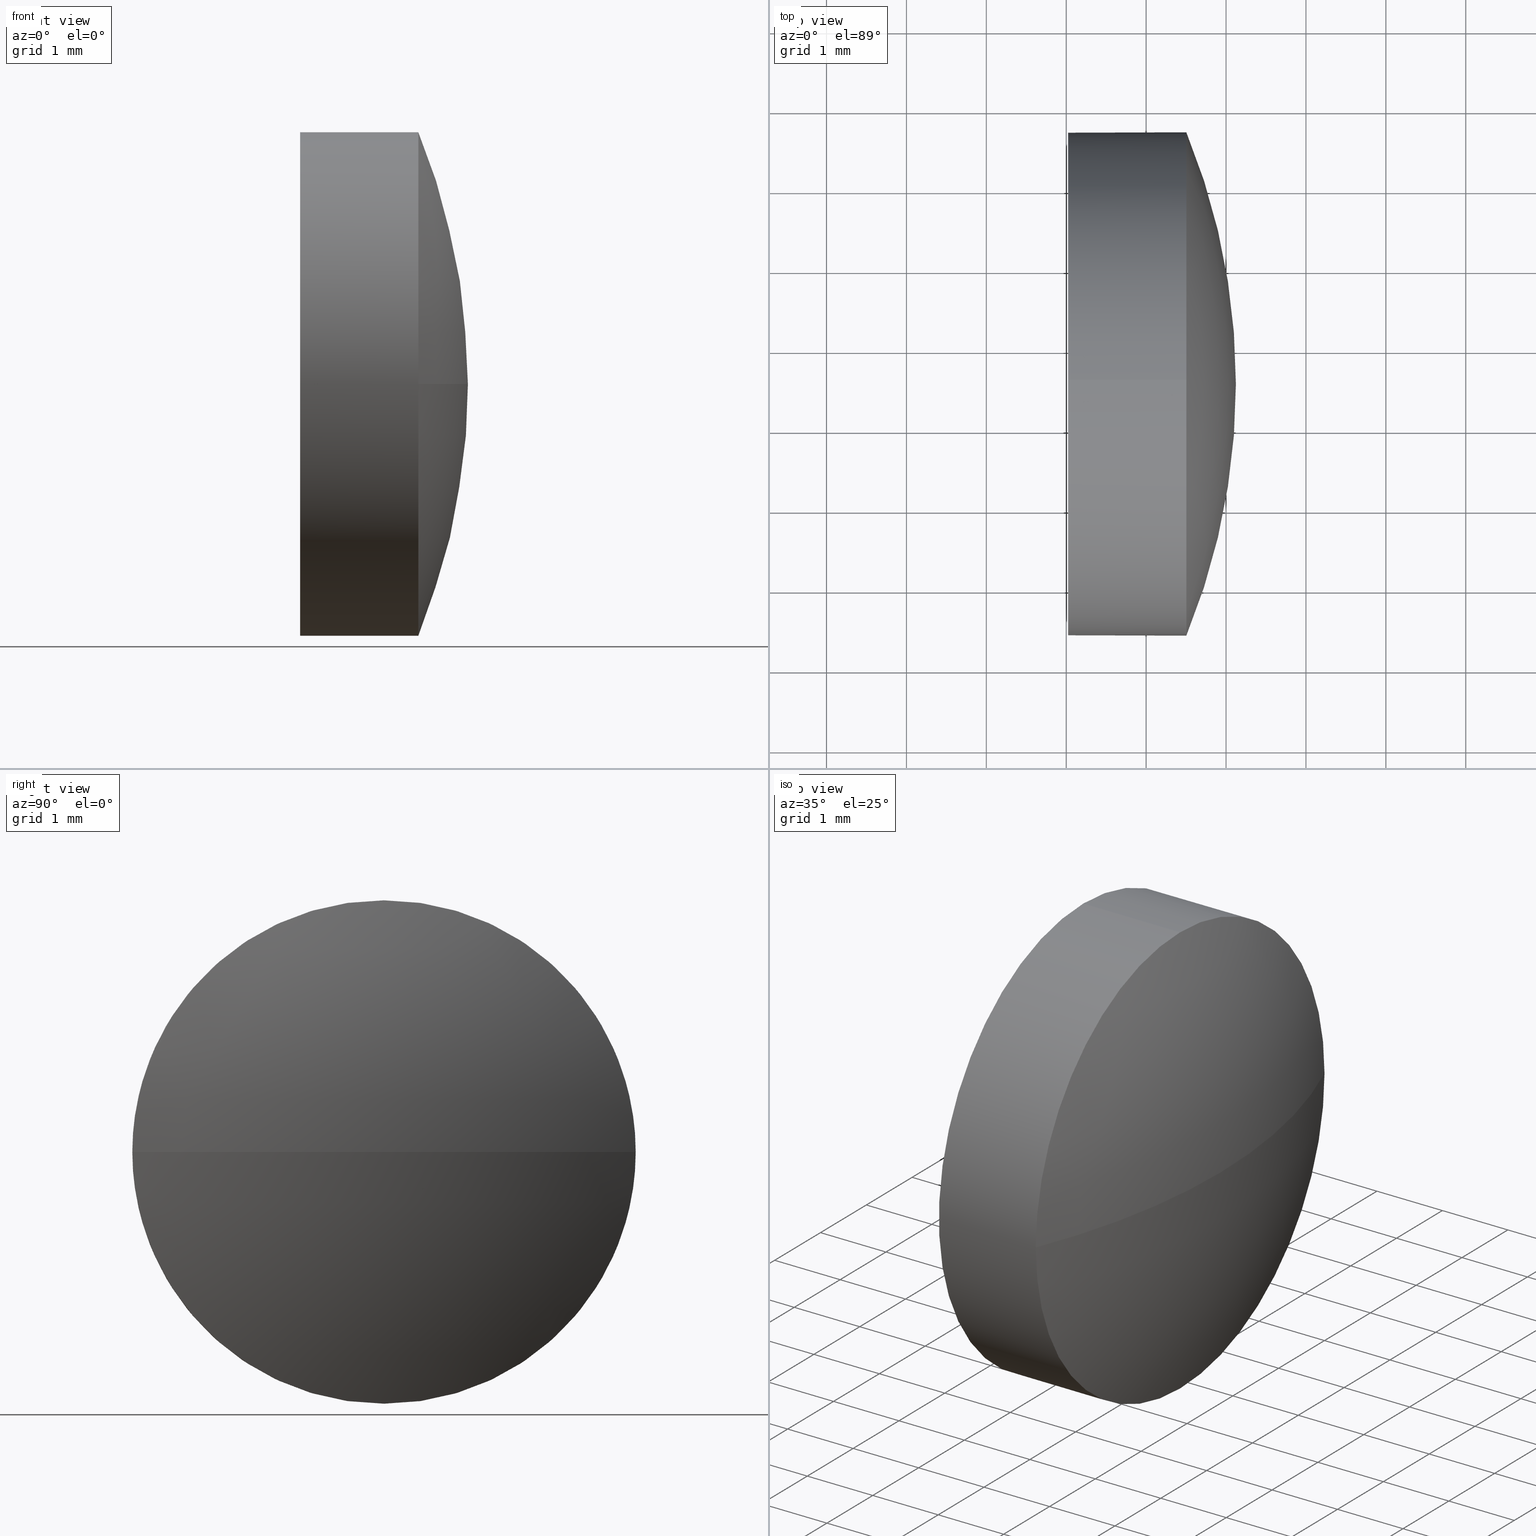
[diagram: canonical four-view strip — front | top / right | iso, engineering-drawing reading convention]
A machine part, canonical four-view strip (front | top / right | iso — engineering-drawing reading convention). The complete STEP part file that produces these views, byte-faithful:
ISO-10303-21;
HEADER;
FILE_DESCRIPTION (( 'STEP AP214' ),
    '1' );
FILE_NAME ('100181.STEP',
    '2019-05-21T02:26:22',
    ( '' ),
    ( '' ),
    'SwSTEP 2.0',
    'SolidWorks 2016',
    '' );
FILE_SCHEMA (( 'AUTOMOTIVE_DESIGN' ));
ENDSEC;

DATA;
#1 = VECTOR ( 'NONE', #74, 1000.000000000000000 ) ;
#2 =( GEOMETRIC_REPRESENTATION_CONTEXT ( 3 ) GLOBAL_UNCERTAINTY_ASSIGNED_CONTEXT ( ( #163 ) ) GLOBAL_UNIT_ASSIGNED_CONTEXT ( ( #8, #63, #62 ) ) REPRESENTATION_CONTEXT ( 'NONE', 'WORKASPACE' ) );
#3 = ORIENTED_EDGE ( 'NONE', *, *, #65, .F. ) ;
#4 = CARTESIAN_POINT ( 'NONE',  ( 444.5033712523841700, -98.43972951502320300, 3.150000000000013700 ) ) ;
#5 = DIRECTION ( 'NONE',  ( -1.000000000000000000, -0.0000000000000000000, -0.0000000000000000000 ) ) ;
#6 = PRODUCT_RELATED_PRODUCT_CATEGORY ( 'part', '', ( #150 ) ) ;
#7 = CARTESIAN_POINT ( 'NONE',  ( 444.5033712523841700, -95.28972951502321100, 0.0000000000000000000 ) ) ;
#8 =( LENGTH_UNIT ( ) NAMED_UNIT ( * ) SI_UNIT ( .MILLI., .METRE. ) );
#9 = CIRCLE ( 'NONE', #48, 8.312016129032318900 ) ;
#10 = APPLICATION_CONTEXT ( 'automotive_design' ) ;
#11 = ORIENTED_EDGE ( 'NONE', *, *, #125, .T. ) ;
#12 =( GEOMETRIC_REPRESENTATION_CONTEXT ( 3 ) GLOBAL_UNCERTAINTY_ASSIGNED_CONTEXT ( ( #92 ) ) GLOBAL_UNIT_ASSIGNED_CONTEXT ( ( #130, #139, #156 ) ) REPRESENTATION_CONTEXT ( 'NONE', 'WORKASPACE' ) );
#13 = ORIENTED_EDGE ( 'NONE', *, *, #169, .F. ) ;
#14 = PRODUCT_DEFINITION_CONTEXT ( 'detailed design', #10, 'design' ) ;
#15 = AXIS2_PLACEMENT_3D ( 'NONE', #51, #5, #174 ) ;
#16 = VECTOR ( 'NONE', #158, 1000.000000000000000 ) ;
#17 = CARTESIAN_POINT ( 'NONE',  ( 443.0233712523840900, -98.43972951502320300, 0.0000000000000000000 ) ) ;
#18 = DIRECTION ( 'NONE',  ( -0.0000000000000000000, 0.0000000000000000000, -1.000000000000000000 ) ) ;
#19 = AXIS2_PLACEMENT_3D ( 'NONE', #140, #18, #77 ) ;
#20 = DIRECTION ( 'NONE',  ( 0.0000000000000000000, 0.0000000000000000000, 1.000000000000000000 ) ) ;
#21 = CARTESIAN_POINT ( 'NONE',  ( 442.2176608398421500, -98.43972951502320300, 3.150000000000013700 ) ) ;
#22 = DIRECTION ( 'NONE',  ( 0.0000000000000000000, 0.0000000000000000000, 1.000000000000000000 ) ) ;
#23 = AXIS2_PLACEMENT_3D ( 'NONE', #116, #129, #78 ) ;
#24 = CIRCLE ( 'NONE', #41, 3.150000000000013700 ) ;
#25 = ADVANCED_FACE ( 'NONE', ( #84 ), #171, .T. ) ;
#26 = ADVANCED_FACE ( 'NONE', ( #121 ), #37, .T. ) ;
#27 = EDGE_CURVE ( 'NONE', #75, #38, #24, .T. ) ;
#28 = SURFACE_STYLE_FILL_AREA ( #104 ) ;
#29 = DIRECTION ( 'NONE',  ( -1.000000000000000000, -0.0000000000000000000, -0.0000000000000000000 ) ) ;
#30 = EDGE_CURVE ( 'NONE', #136, #114, #42, .T. ) ;
#31 = ORIENTED_EDGE ( 'NONE', *, *, #112, .T. ) ;
#32 = PRODUCT_DEFINITION ( 'δ֪', '', #164, #14 ) ;
#33 = FILL_AREA_STYLE ('',( #106 ) ) ;
#34 =( NAMED_UNIT ( * ) PLANE_ANGLE_UNIT ( ) SI_UNIT ( $, .RADIAN. ) );
#35 = EDGE_LOOP ( 'NONE', ( #145, #117, #111, #157, #72 ) ) ;
#36 = SURFACE_SIDE_STYLE ('',( #182 ) ) ;
#37 = SPHERICAL_SURFACE ( 'NONE', #181, 8.312016129032320700 ) ;
#38 = VERTEX_POINT ( 'NONE', #83 ) ;
#39 = ORIENTED_EDGE ( 'NONE', *, *, #88, .F. ) ;
#40 = CARTESIAN_POINT ( 'NONE',  ( 442.2176608398421500, -98.43972951502320300, 0.0000000000000000000 ) ) ;
#41 = AXIS2_PLACEMENT_3D ( 'NONE', #17, #173, #186 ) ;
#42 = CIRCLE ( 'NONE', #115, 3.150000000000013700 ) ;
#43 = CARTESIAN_POINT ( 'NONE',  ( 443.0233712523840900, -98.43972951502320300, -3.150000000000013700 ) ) ;
#44 = EDGE_LOOP ( 'NONE', ( #31, #11, #39, #13, #120 ) ) ;
#45 = CARTESIAN_POINT ( 'NONE',  ( 444.5033712523841700, -98.43972951502320300, 0.0000000000000000000 ) ) ;
#46 = CARTESIAN_POINT ( 'NONE',  ( 444.5033712523841700, -101.5897295150232700, -3.857637417314167600E-016 ) ) ;
#47 = CARTESIAN_POINT ( 'NONE',  ( 444.5033712523841700, -98.43972951502320300, -3.150000000000013700 ) ) ;
#48 = AXIS2_PLACEMENT_3D ( 'NONE', #69, #110, #123 ) ;
#49 = CARTESIAN_POINT ( 'NONE',  ( 444.5033712523841700, -98.43972951502320300, 0.0000000000000000000 ) ) ;
#50 = CIRCLE ( 'NONE', #80, 3.150000000000013700 ) ;
#51 = CARTESIAN_POINT ( 'NONE',  ( 443.0233712523840900, -98.43972951502320300, 0.0000000000000000000 ) ) ;
#52 = APPLICATION_PROTOCOL_DEFINITION ( 'draft international standard', 'automotive_design', 1998, #10 ) ;
#53 = ADVANCED_FACE ( 'NONE', ( #56 ), #131, .T. ) ;
#54 = ORIENTED_EDGE ( 'NONE', *, *, #108, .T. ) ;
#55 = STYLED_ITEM ( 'NONE', ( #180 ), #132 ) ;
#56 = FACE_OUTER_BOUND ( 'NONE', #35, .T. ) ;
#57 = SPHERICAL_SURFACE ( 'NONE', #19, 8.312016129032320700 ) ;
#58 = CARTESIAN_POINT ( 'NONE',  ( 442.2176608398421500, -98.43972951502320300, 0.0000000000000000000 ) ) ;
#59 = DIRECTION ( 'NONE',  ( 0.0000000000000000000, 0.0000000000000000000, 1.000000000000000000 ) ) ;
#60 = AXIS2_PLACEMENT_3D ( 'NONE', #178, #103, #76 ) ;
#61 = ORIENTED_EDGE ( 'NONE', *, *, #108, .F. ) ;
#62 =( NAMED_UNIT ( * ) SI_UNIT ( $, .STERADIAN. ) SOLID_ANGLE_UNIT ( ) );
#63 =( NAMED_UNIT ( * ) PLANE_ANGLE_UNIT ( ) SI_UNIT ( $, .RADIAN. ) );
#64 = LINE ( 'NONE', #21, #16 ) ;
#65 = EDGE_CURVE ( 'NONE', #86, #146, #9, .T. ) ;
#66 = PRESENTATION_STYLE_ASSIGNMENT (( #137 ) ) ;
#67 = DIRECTION ( 'NONE',  ( -1.000000000000000000, -0.0000000000000000000, -0.0000000000000000000 ) ) ;
#68 = COLOUR_RGB ( '',1.000000000000000000, 1.000000000000000000, 1.000000000000000000 ) ;
#69 = CARTESIAN_POINT ( 'NONE',  ( 436.8113551233518600, -98.43972951502324500, 0.0000000000000000000 ) ) ;
#70 = EDGE_CURVE ( 'NONE', #109, #136, #50, .T. ) ;
#71 = EDGE_LOOP ( 'NONE', ( #90, #126 ) ) ;
#72 = ORIENTED_EDGE ( 'NONE', *, *, #27, .F. ) ;
#73 = CARTESIAN_POINT ( 'NONE',  ( 445.1233712523841700, -98.43972951502324500, 0.0000000000000000000 ) ) ;
#74 = DIRECTION ( 'NONE',  ( -1.000000000000000000, -0.0000000000000000000, -0.0000000000000000000 ) ) ;
#75 = VERTEX_POINT ( 'NONE', #43 ) ;
#76 = DIRECTION ( 'NONE',  ( 0.0000000000000000000, 0.0000000000000000000, 1.000000000000000000 ) ) ;
#77 = DIRECTION ( 'NONE',  ( 0.0000000000000000000, 1.000000000000000000, 0.0000000000000000000 ) ) ;
#78 = DIRECTION ( 'NONE',  ( 0.0000000000000000000, 1.000000000000000000, 1.224646799147353700E-016 ) ) ;
#79 = ADVANCED_FACE ( 'NONE', ( #93 ), #147, .F. ) ;
#80 = AXIS2_PLACEMENT_3D ( 'NONE', #167, #94, #59 ) ;
#81 = PRESENTATION_LAYER_ASSIGNMENT (  '', '', ( #55 ) ) ;
#82 = EDGE_LOOP ( 'NONE', ( #61, #99, #141, #119 ) ) ;
#83 = CARTESIAN_POINT ( 'NONE',  ( 443.0233712523840900, -98.43972951502320300, 3.150000000000013700 ) ) ;
#84 = FACE_OUTER_BOUND ( 'NONE', #44, .T. ) ;
#85 = CIRCLE ( 'NONE', #176, 3.150000000000013700 ) ;
#86 = VERTEX_POINT ( 'NONE', #73 ) ;
#87 = DIRECTION ( 'NONE',  ( -1.000000000000000000, -0.0000000000000000000, -0.0000000000000000000 ) ) ;
#88 = EDGE_CURVE ( 'NONE', #38, #75, #149, .T. ) ;
#89 = FILL_AREA_STYLE_COLOUR ( '', #107 ) ;
#90 = ORIENTED_EDGE ( 'NONE', *, *, #88, .T. ) ;
#91 = PRODUCT_CONTEXT ( 'NONE', #179, 'mechanical' ) ;
#92 = UNCERTAINTY_MEASURE_WITH_UNIT (LENGTH_MEASURE( 1.000000000000000100E-005 ), #130, 'distance_accuracy_value', 'NONE');
#93 = FACE_OUTER_BOUND ( 'NONE', #71, .T. ) ;
#94 = DIRECTION ( 'NONE',  ( -1.000000000000000000, -0.0000000000000000000, -0.0000000000000000000 ) ) ;
#95 = DIRECTION ( 'NONE',  ( -1.000000000000000000, -0.0000000000000000000, -0.0000000000000000000 ) ) ;
#96 = DIRECTION ( 'NONE',  ( 0.0000000000000000000, 1.000000000000000000, 0.0000000000000000000 ) ) ;
#97 = SHAPE_DEFINITION_REPRESENTATION ( #138, #132 ) ;
#98 = PRESENTATION_LAYER_ASSIGNMENT (  '', '', ( #185 ) ) ;
#99 = ORIENTED_EDGE ( 'NONE', *, *, #65, .T. ) ;
#100 = CIRCLE ( 'NONE', #23, 8.312016129032318900 ) ;
#101 = DIRECTION ( 'NONE',  ( 0.0000000000000000000, 0.0000000000000000000, 1.000000000000000000 ) ) ;
#102 = SURFACE_SIDE_STYLE ('',( #28 ) ) ;
#103 = DIRECTION ( 'NONE',  ( -1.000000000000000000, -0.0000000000000000000, -0.0000000000000000000 ) ) ;
#104 = FILL_AREA_STYLE ('',( #89 ) ) ;
#105 = SURFACE_STYLE_USAGE ( .BOTH. , #36 ) ;
#106 = FILL_AREA_STYLE_COLOUR ( '', #68 ) ;
#107 = COLOUR_RGB ( '',1.000000000000000000, 1.000000000000000000, 1.000000000000000000 ) ;
#108 = EDGE_CURVE ( 'NONE', #86, #136, #100, .T. ) ;
#109 = VERTEX_POINT ( 'NONE', #47 ) ;
#110 = DIRECTION ( 'NONE',  ( -0.0000000000000000000, 0.0000000000000000000, 1.000000000000000000 ) ) ;
#111 = ORIENTED_EDGE ( 'NONE', *, *, #30, .T. ) ;
#112 = EDGE_CURVE ( 'NONE', #146, #109, #135, .T. ) ;
#113 = EDGE_LOOP ( 'NONE', ( #3, #54, #134, #144 ) ) ;
#114 = VERTEX_POINT ( 'NONE', #4 ) ;
#115 = AXIS2_PLACEMENT_3D ( 'NONE', #45, #29, #101 ) ;
#116 = CARTESIAN_POINT ( 'NONE',  ( 436.8113551233518600, -98.43972951502324500, 0.0000000000000000000 ) ) ;
#117 = ORIENTED_EDGE ( 'NONE', *, *, #70, .T. ) ;
#118 =( LENGTH_UNIT ( ) NAMED_UNIT ( * ) SI_UNIT ( .MILLI., .METRE. ) );
#119 = ORIENTED_EDGE ( 'NONE', *, *, #30, .F. ) ;
#120 = ORIENTED_EDGE ( 'NONE', *, *, #159, .T. ) ;
#121 = FACE_OUTER_BOUND ( 'NONE', #82, .T. ) ;
#122 = DIRECTION ( 'NONE',  ( 1.000000000000000000, 0.0000000000000000000, 0.0000000000000000000 ) ) ;
#123 = DIRECTION ( 'NONE',  ( 1.000000000000000000, 0.0000000000000000000, 0.0000000000000000000 ) ) ;
#124 = MANIFOLD_SOLID_BREP ( '��ת1', #161 ) ;
#125 = EDGE_CURVE ( 'NONE', #109, #75, #142, .T. ) ;
#126 = ORIENTED_EDGE ( 'NONE', *, *, #27, .T. ) ;
#127 = DIRECTION ( 'NONE',  ( 0.0000000000000000000, 0.0000000000000000000, 1.000000000000000000 ) ) ;
#128 = DIRECTION ( 'NONE',  ( -0.0000000000000000000, 0.0000000000000000000, -1.000000000000000000 ) ) ;
#129 = DIRECTION ( 'NONE',  ( 0.0000000000000000000, 1.224646799147353200E-016, -1.000000000000000000 ) ) ;
#130 =( LENGTH_UNIT ( ) NAMED_UNIT ( * ) SI_UNIT ( .MILLI., .METRE. ) );
#131 = CYLINDRICAL_SURFACE ( 'NONE', #143, 3.150000000000013700 ) ;
#132 = ADVANCED_BREP_SHAPE_REPRESENTATION ( '100181', ( #124, #183 ), #12 ) ;
#133 =( NAMED_UNIT ( * ) SI_UNIT ( $, .STERADIAN. ) SOLID_ANGLE_UNIT ( ) );
#134 = ORIENTED_EDGE ( 'NONE', *, *, #70, .F. ) ;
#135 = CIRCLE ( 'NONE', #60, 3.150000000000013700 ) ;
#136 = VERTEX_POINT ( 'NONE', #46 ) ;
#137 = SURFACE_STYLE_USAGE ( .BOTH. , #102 ) ;
#138 = PRODUCT_DEFINITION_SHAPE ( 'NONE', 'NONE',  #32 ) ;
#139 =( NAMED_UNIT ( * ) PLANE_ANGLE_UNIT ( ) SI_UNIT ( $, .RADIAN. ) );
#140 = CARTESIAN_POINT ( 'NONE',  ( 436.8113551233518600, -98.43972951502324500, 0.0000000000000000000 ) ) ;
#141 = ORIENTED_EDGE ( 'NONE', *, *, #159, .F. ) ;
#142 = LINE ( 'NONE', #153, #1 ) ;
#143 = AXIS2_PLACEMENT_3D ( 'NONE', #40, #95, #127 ) ;
#144 = ORIENTED_EDGE ( 'NONE', *, *, #112, .F. ) ;
#145 = ORIENTED_EDGE ( 'NONE', *, *, #125, .F. ) ;
#146 = VERTEX_POINT ( 'NONE', #7 ) ;
#147 = PLANE ( 'NONE',  #162 ) ;
#148 = AXIS2_PLACEMENT_3D ( 'NONE', #58, #67, #151 ) ;
#149 = CIRCLE ( 'NONE', #15, 3.150000000000013700 ) ;
#150 = PRODUCT ( '100181', '100181', '', ( #91 ) ) ;
#151 = DIRECTION ( 'NONE',  ( 0.0000000000000000000, 0.0000000000000000000, 1.000000000000000000 ) ) ;
#152 = MECHANICAL_DESIGN_GEOMETRIC_PRESENTATION_REPRESENTATION (  '', ( #185 ), #2 ) ;
#153 = CARTESIAN_POINT ( 'NONE',  ( 442.2176608398421500, -98.43972951502320300, -3.150000000000013700 ) ) ;
#154 = UNCERTAINTY_MEASURE_WITH_UNIT (LENGTH_MEASURE( 1.000000000000000100E-005 ), #118, 'distance_accuracy_value', 'NONE');
#155 = MECHANICAL_DESIGN_GEOMETRIC_PRESENTATION_REPRESENTATION (  '', ( #55 ), #170 ) ;
#156 =( NAMED_UNIT ( * ) SI_UNIT ( $, .STERADIAN. ) SOLID_ANGLE_UNIT ( ) );
#157 = ORIENTED_EDGE ( 'NONE', *, *, #169, .T. ) ;
#158 = DIRECTION ( 'NONE',  ( -1.000000000000000000, -0.0000000000000000000, -0.0000000000000000000 ) ) ;
#159 = EDGE_CURVE ( 'NONE', #114, #146, #85, .T. ) ;
#160 = CARTESIAN_POINT ( 'NONE',  ( 0.0000000000000000000, 0.0000000000000000000, 0.0000000000000000000 ) ) ;
#161 = CLOSED_SHELL ( 'NONE', ( #25, #165, #26, #53, #79 ) ) ;
#162 = AXIS2_PLACEMENT_3D ( 'NONE', #184, #122, #172 ) ;
#163 = UNCERTAINTY_MEASURE_WITH_UNIT (LENGTH_MEASURE( 1.000000000000000100E-005 ), #8, 'distance_accuracy_value', 'NONE');
#164 = PRODUCT_DEFINITION_FORMATION_WITH_SPECIFIED_SOURCE ( '�κ�', '', #150, .NOT_KNOWN. ) ;
#165 = ADVANCED_FACE ( 'NONE', ( #166 ), #57, .T. ) ;
#166 = FACE_OUTER_BOUND ( 'NONE', #113, .T. ) ;
#167 = CARTESIAN_POINT ( 'NONE',  ( 444.5033712523841700, -98.43972951502320300, 0.0000000000000000000 ) ) ;
#168 = CARTESIAN_POINT ( 'NONE',  ( 436.8113551233518600, -98.43972951502324500, 0.0000000000000000000 ) ) ;
#169 = EDGE_CURVE ( 'NONE', #114, #38, #64, .T. ) ;
#170 =( GEOMETRIC_REPRESENTATION_CONTEXT ( 3 ) GLOBAL_UNCERTAINTY_ASSIGNED_CONTEXT ( ( #154 ) ) GLOBAL_UNIT_ASSIGNED_CONTEXT ( ( #118, #34, #133 ) ) REPRESENTATION_CONTEXT ( 'NONE', 'WORKASPACE' ) );
#171 = CYLINDRICAL_SURFACE ( 'NONE', #148, 3.150000000000013700 ) ;
#172 = DIRECTION ( 'NONE',  ( 0.0000000000000000000, 0.0000000000000000000, -1.000000000000000000 ) ) ;
#173 = DIRECTION ( 'NONE',  ( -1.000000000000000000, -0.0000000000000000000, -0.0000000000000000000 ) ) ;
#174 = DIRECTION ( 'NONE',  ( 0.0000000000000000000, 0.0000000000000000000, 1.000000000000000000 ) ) ;
#175 = DIRECTION ( 'NONE',  ( 1.000000000000000000, 0.0000000000000000000, 0.0000000000000000000 ) ) ;
#176 = AXIS2_PLACEMENT_3D ( 'NONE', #49, #87, #20 ) ;
#177 = APPLICATION_PROTOCOL_DEFINITION ( 'draft international standard', 'automotive_design', 1998, #179 ) ;
#178 = CARTESIAN_POINT ( 'NONE',  ( 444.5033712523841700, -98.43972951502320300, 0.0000000000000000000 ) ) ;
#179 = APPLICATION_CONTEXT ( 'automotive_design' ) ;
#180 = PRESENTATION_STYLE_ASSIGNMENT (( #105 ) ) ;
#181 = AXIS2_PLACEMENT_3D ( 'NONE', #168, #128, #96 ) ;
#182 = SURFACE_STYLE_FILL_AREA ( #33 ) ;
#183 = AXIS2_PLACEMENT_3D ( 'NONE', #160, #22, #175 ) ;
#184 = CARTESIAN_POINT ( 'NONE',  ( 443.0233712523840900, -98.43972951502320300, 0.0000000000000000000 ) ) ;
#185 = STYLED_ITEM ( 'NONE', ( #66 ), #124 ) ;
#186 = DIRECTION ( 'NONE',  ( 0.0000000000000000000, 0.0000000000000000000, 1.000000000000000000 ) ) ;
ENDSEC;
END-ISO-10303-21;
